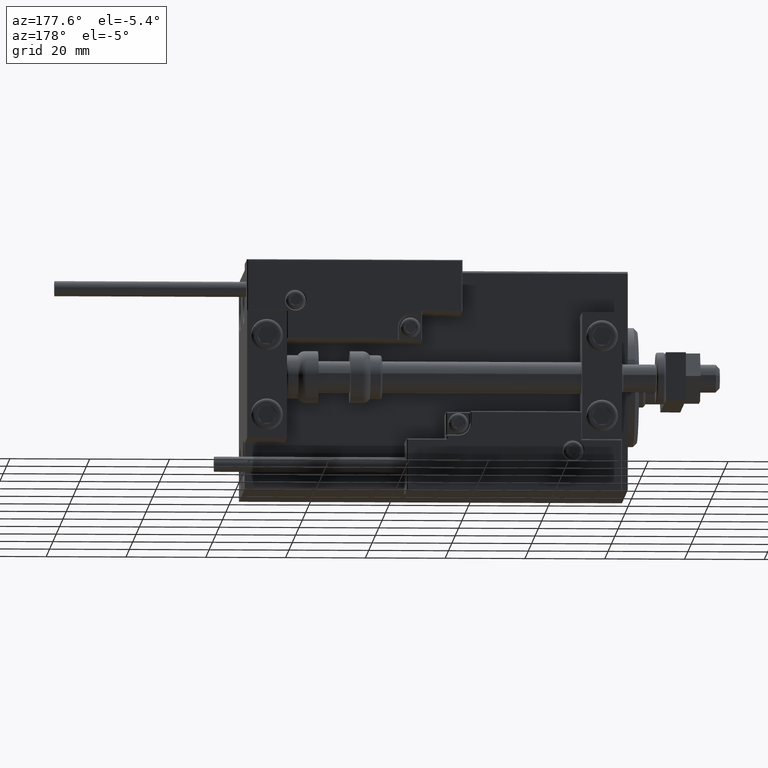
[diagram: clean part render]
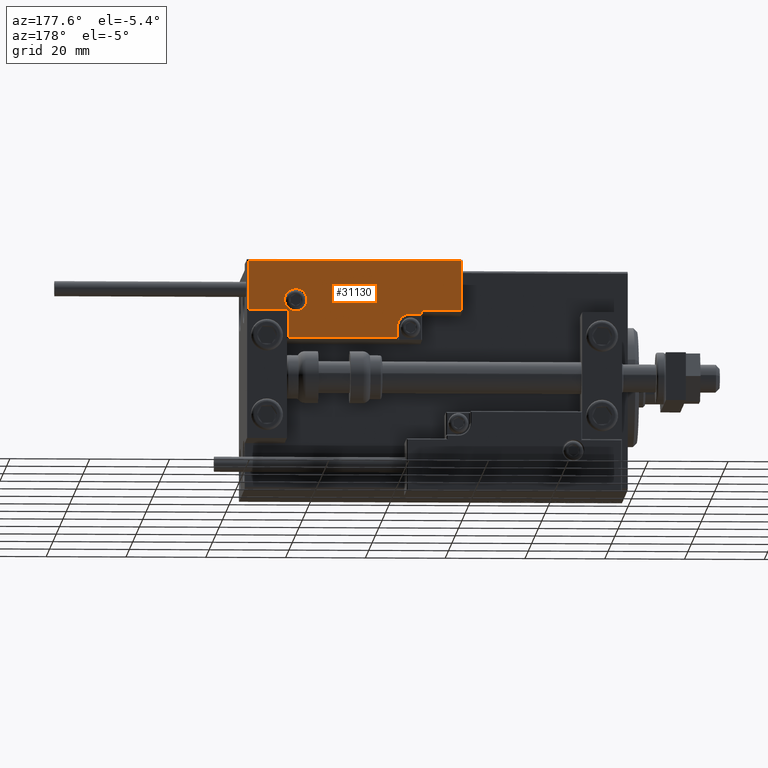
[diagram: same view with one face highlighted and labeled with its STEP entity id]
A machine part, auxiliary view. The second image highlights one B-rep face of the part: STEP entity #31130.
In plain terms, the highlighted planar face has unit normal (0, 1, -0).
Its self-contained STEP definition (entity closure, byte-faithful):
#788 = ORIENTED_EDGE ( 'NONE', *, *, #17248, .T. ) ;
#1582 = CARTESIAN_POINT ( 'NONE',  ( 13.99999999999999822, 3.000000000000002665, 14.00000000000000000 ) ) ;
#1604 = DIRECTION ( 'NONE',  ( 1.000000000000000000, -1.734723475976796001E-16, 0.000000000000000000 ) ) ;
#1632 = DIRECTION ( 'NONE',  ( 1.000000000000000000, 0.000000000000000000, 0.000000000000000000 ) ) ;
#1815 = VERTEX_POINT ( 'NONE', #42785 ) ;
#2466 = VECTOR ( 'NONE', #1604, 1000.000000000000000 ) ;
#3958 = AXIS2_PLACEMENT_3D ( 'NONE', #35157, #27319, #47583 ) ;
#4735 = FACE_OUTER_BOUND ( 'NONE', #16159, .T. ) ;
#4986 = CARTESIAN_POINT ( 'NONE',  ( -16.99999999999999289, 7.300000000000003375, 14.00000000000000000 ) ) ;
#5399 = ORIENTED_EDGE ( 'NONE', *, *, #49564, .T. ) ;
#6335 = VERTEX_POINT ( 'NONE', #16977 ) ;
#6362 = ORIENTED_EDGE ( 'NONE', *, *, #49984, .T. ) ;
#6369 = VECTOR ( 'NONE', #31853, 1000.000000000000000 ) ;
#6595 = LINE ( 'NONE', #37760, #25968 ) ;
#6872 = CARTESIAN_POINT ( 'NONE',  ( -17.59999999999994813, 9.800000000000004263, 14.00000000000000000 ) ) ;
#7513 = DIRECTION ( 'NONE',  ( 1.000000000000000000, 5.782411586589357639E-16, -0.000000000000000000 ) ) ;
#7691 = VERTEX_POINT ( 'NONE', #9555 ) ;
#9226 = EDGE_CURVE ( 'NONE', #32811, #6335, #14975, .T. ) ;
#9555 = CARTESIAN_POINT ( 'NONE',  ( -26.69999999999994600, 7.300000000000005151, 14.00000000000000000 ) ) ;
#10070 = VERTEX_POINT ( 'NONE', #26466 ) ;
#10081 = CIRCLE ( 'NONE', #11702, 3.299999999999997158 ) ;
#10456 = ORIENTED_EDGE ( 'NONE', *, *, #26515, .T. ) ;
#10615 = EDGE_LOOP ( 'NONE', ( #32389, #11159 ) ) ;
#10920 = ORIENTED_EDGE ( 'NONE', *, *, #36352, .T. ) ;
#11159 = ORIENTED_EDGE ( 'NONE', *, *, #14613, .T. ) ;
#11534 = DIRECTION ( 'NONE',  ( 1.000000000000000000, -0.000000000000000000, 0.000000000000000000 ) ) ;
#11702 = AXIS2_PLACEMENT_3D ( 'NONE', #1582, #48732, #18046 ) ;
#12289 = LINE ( 'NONE', #41939, #16015 ) ;
#13046 = DIRECTION ( 'NONE',  ( 0.000000000000000000, -0.000000000000000000, -1.000000000000000000 ) ) ;
#14593 = LINE ( 'NONE', #45501, #15479 ) ;
#14613 = EDGE_CURVE ( 'NONE', #18624, #38061, #19366, .T. ) ;
#14975 = LINE ( 'NONE', #49204, #36177 ) ;
#15479 = VECTOR ( 'NONE', #38397, 1000.000000000000000 ) ;
#15510 = CARTESIAN_POINT ( 'NONE',  ( -16.69999999999999218, 3.252606517456513302E-15, 14.00000000000000000 ) ) ;
#15901 = CARTESIAN_POINT ( 'NONE',  ( 26.70000000000006324, 7.300000000000007816, 14.00000000000000000 ) ) ;
#16015 = VECTOR ( 'NONE', #11534, 1000.000000000000000 ) ;
#16159 = EDGE_LOOP ( 'NONE', ( #47952, #18819, #47188, #788, #5399, #25481, #6362, #10920, #37303, #22722, #10456 ) ) ;
#16405 = LINE ( 'NONE', #4986, #6369 ) ;
#16977 = CARTESIAN_POINT ( 'NONE',  ( 16.69999999999999929, 7.300000000000009592, 14.00000000000000000 ) ) ;
#17153 = PLANE ( 'NONE',  #41184 ) ;
#17248 = EDGE_CURVE ( 'NONE', #1815, #36292, #10081, .T. ) ;
#17377 = DIRECTION ( 'NONE',  ( -8.006416042969869188E-16, -1.000000000000000000, 0.000000000000000000 ) ) ;
#18046 = DIRECTION ( 'NONE',  ( 1.000000000000000000, 0.000000000000000000, 0.000000000000000000 ) ) ;
#18254 = VERTEX_POINT ( 'NONE', #22657 ) ;
#18624 = VERTEX_POINT ( 'NONE', #6872 ) ;
#18819 = ORIENTED_EDGE ( 'NONE', *, *, #27704, .T. ) ;
#19366 = CIRCLE ( 'NONE', #37149, 2.800000000000000266 ) ;
#19465 = CARTESIAN_POINT ( 'NONE',  ( -14.79999999999994920, 9.800000000000004263, 14.00000000000000000 ) ) ;
#20020 = CARTESIAN_POINT ( 'NONE',  ( 26.70000000000006324, 19.70000000000001705, 14.00000000000000000 ) ) ;
#20053 = VERTEX_POINT ( 'NONE', #34079 ) ;
#21180 = LINE ( 'NONE', #32585, #45484 ) ;
#22563 = VECTOR ( 'NONE', #36828, 1000.000000000000000 ) ;
#22657 = CARTESIAN_POINT ( 'NONE',  ( -16.69999999999999218, 7.300000000000003375, 14.00000000000000000 ) ) ;
#22722 = ORIENTED_EDGE ( 'NONE', *, *, #42279, .T. ) ;
#23226 = LINE ( 'NONE', #45540, #34739 ) ;
#23750 = VERTEX_POINT ( 'NONE', #26227 ) ;
#24005 = FACE_BOUND ( 'NONE', #10615, .T. ) ;
#24218 = EDGE_CURVE ( 'NONE', #18254, #10070, #27413, .T. ) ;
#25014 = DIRECTION ( 'NONE',  ( 1.000000000000000000, 0.000000000000000000, 0.000000000000000000 ) ) ;
#25481 = ORIENTED_EDGE ( 'NONE', *, *, #9226, .T. ) ;
#25824 = CIRCLE ( 'NONE', #3958, 2.800000000000000266 ) ;
#25968 = VECTOR ( 'NONE', #26375, 1000.000000000000000 ) ;
#26227 = CARTESIAN_POINT ( 'NONE',  ( -26.69999999999993534, 19.70000000000002061, 14.00000000000000000 ) ) ;
#26375 = DIRECTION ( 'NONE',  ( -0.000000000000000000, 1.000000000000000000, -0.000000000000000000 ) ) ;
#26466 = CARTESIAN_POINT ( 'NONE',  ( -16.69999999999999218, 0.3000000000000032085, 14.00000000000000000 ) ) ;
#26515 = EDGE_CURVE ( 'NONE', #7691, #18254, #16405, .T. ) ;
#27319 = DIRECTION ( 'NONE',  ( 0.000000000000000000, -0.000000000000000000, -1.000000000000000000 ) ) ;
#27413 = LINE ( 'NONE', #15510, #38652 ) ;
#27704 = EDGE_CURVE ( 'NONE', #10070, #20053, #12289, .T. ) ;
#29230 = LINE ( 'NONE', #36321, #2466 ) ;
#30616 = EDGE_CURVE ( 'NONE', #48476, #23750, #36585, .T. ) ;
#31130 = ADVANCED_FACE ( 'NONE', ( #24005, #4735 ), #17153, .T. ) ;
#31649 = EDGE_CURVE ( 'NONE', #38061, #18624, #25824, .T. ) ;
#31853 = DIRECTION ( 'NONE',  ( 1.000000000000000000, -1.734723475976815230E-16, 0.000000000000000000 ) ) ;
#32389 = ORIENTED_EDGE ( 'NONE', *, *, #31649, .T. ) ;
#32585 = CARTESIAN_POINT ( 'NONE',  ( -26.69999999999994600, 7.000000000000005329, 14.00000000000000000 ) ) ;
#32811 = VERTEX_POINT ( 'NONE', #37649 ) ;
#34079 = CARTESIAN_POINT ( 'NONE',  ( 10.69999999999999929, 0.3000000000000032085, 14.00000000000000000 ) ) ;
#34739 = VECTOR ( 'NONE', #7513, 1000.000000000000000 ) ;
#35157 = CARTESIAN_POINT ( 'NONE',  ( -14.79999999999994920, 9.800000000000004263, 14.00000000000000000 ) ) ;
#35645 = CARTESIAN_POINT ( 'NONE',  ( 0.000000000000000000, 0.000000000000000000, 14.00000000000000000 ) ) ;
#35987 = EDGE_CURVE ( 'NONE', #20053, #1815, #6595, .T. ) ;
#36177 = VECTOR ( 'NONE', #49455, 1000.000000000000000 ) ;
#36292 = VERTEX_POINT ( 'NONE', #36897 ) ;
#36321 = CARTESIAN_POINT ( 'NONE',  ( 27.00000000000006395, 7.300000000000007816, 14.00000000000000000 ) ) ;
#36352 = EDGE_CURVE ( 'NONE', #42911, #48476, #14593, .T. ) ;
#36585 = LINE ( 'NONE', #37071, #22563 ) ;
#36828 = DIRECTION ( 'NONE',  ( -1.000000000000000000, 6.424901762877063495E-17, -0.000000000000000000 ) ) ;
#36897 = CARTESIAN_POINT ( 'NONE',  ( 13.99999999999999822, 6.300000000000001599, 14.00000000000000000 ) ) ;
#37071 = CARTESIAN_POINT ( 'NONE',  ( -26.99999999999993605, 19.70000000000002061, 14.00000000000000000 ) ) ;
#37149 = AXIS2_PLACEMENT_3D ( 'NONE', #19465, #13046, #1632 ) ;
#37303 = ORIENTED_EDGE ( 'NONE', *, *, #30616, .T. ) ;
#37649 = CARTESIAN_POINT ( 'NONE',  ( 16.69999999999999929, 6.300000000000003375, 14.00000000000000000 ) ) ;
#37760 = CARTESIAN_POINT ( 'NONE',  ( 10.69999999999999929, 3.000000000000003109, 14.00000000000000000 ) ) ;
#38061 = VERTEX_POINT ( 'NONE', #45416 ) ;
#38397 = DIRECTION ( 'NONE',  ( 0.000000000000000000, 1.000000000000000000, -0.000000000000000000 ) ) ;
#38652 = VECTOR ( 'NONE', #46178, 1000.000000000000000 ) ;
#41184 = AXIS2_PLACEMENT_3D ( 'NONE', #35645, #48077, #25014 ) ;
#41939 = CARTESIAN_POINT ( 'NONE',  ( 11.00000000000000000, 0.3000000000000032085, 14.00000000000000000 ) ) ;
#42279 = EDGE_CURVE ( 'NONE', #23750, #7691, #21180, .T. ) ;
#42785 = CARTESIAN_POINT ( 'NONE',  ( 10.69999999999999929, 3.000000000000003109, 14.00000000000000000 ) ) ;
#42911 = VERTEX_POINT ( 'NONE', #15901 ) ;
#45416 = CARTESIAN_POINT ( 'NONE',  ( -11.99999999999994849, 9.800000000000004263, 14.00000000000000000 ) ) ;
#45484 = VECTOR ( 'NONE', #17377, 1000.000000000000000 ) ;
#45501 = CARTESIAN_POINT ( 'NONE',  ( 26.70000000000006324, 20.00000000000001776, 14.00000000000000000 ) ) ;
#45540 = CARTESIAN_POINT ( 'NONE',  ( 17.00000000000000000, 6.300000000000003375, 14.00000000000000000 ) ) ;
#46178 = DIRECTION ( 'NONE',  ( 0.000000000000000000, -1.000000000000000000, 0.000000000000000000 ) ) ;
#47188 = ORIENTED_EDGE ( 'NONE', *, *, #35987, .T. ) ;
#47583 = DIRECTION ( 'NONE',  ( 1.000000000000000000, 0.000000000000000000, 0.000000000000000000 ) ) ;
#47952 = ORIENTED_EDGE ( 'NONE', *, *, #24218, .T. ) ;
#48077 = DIRECTION ( 'NONE',  ( -0.000000000000000000, 0.000000000000000000, 1.000000000000000000 ) ) ;
#48476 = VERTEX_POINT ( 'NONE', #20020 ) ;
#48732 = DIRECTION ( 'NONE',  ( 0.000000000000000000, -0.000000000000000000, -1.000000000000000000 ) ) ;
#49204 = CARTESIAN_POINT ( 'NONE',  ( 16.69999999999999929, 7.000000000000009770, 14.00000000000000000 ) ) ;
#49455 = DIRECTION ( 'NONE',  ( 9.912705577010318647E-16, 1.000000000000000000, 0.000000000000000000 ) ) ;
#49564 = EDGE_CURVE ( 'NONE', #36292, #32811, #23226, .T. ) ;
#49984 = EDGE_CURVE ( 'NONE', #6335, #42911, #29230, .T. ) ;